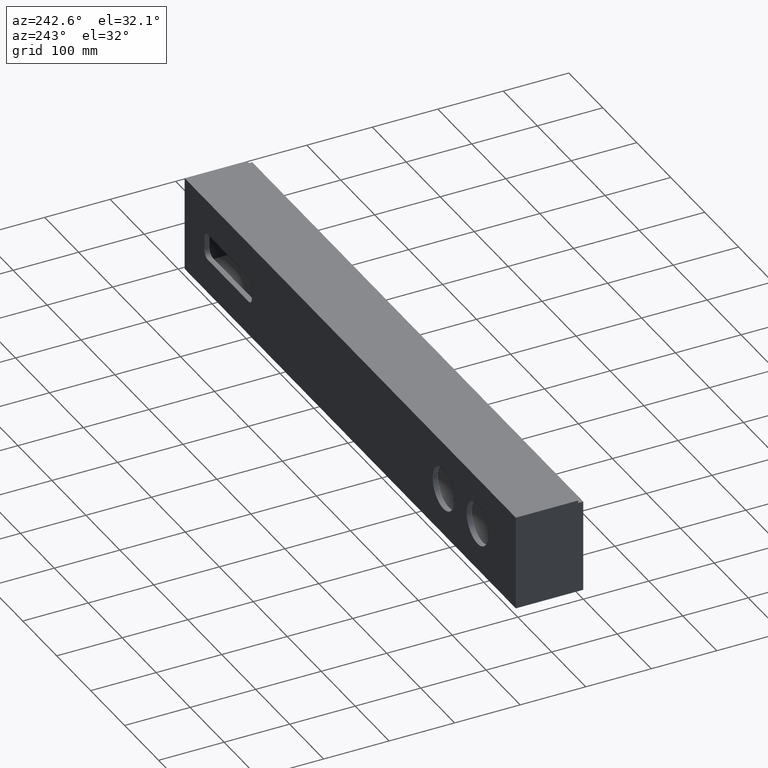
[diagram: clean part render]
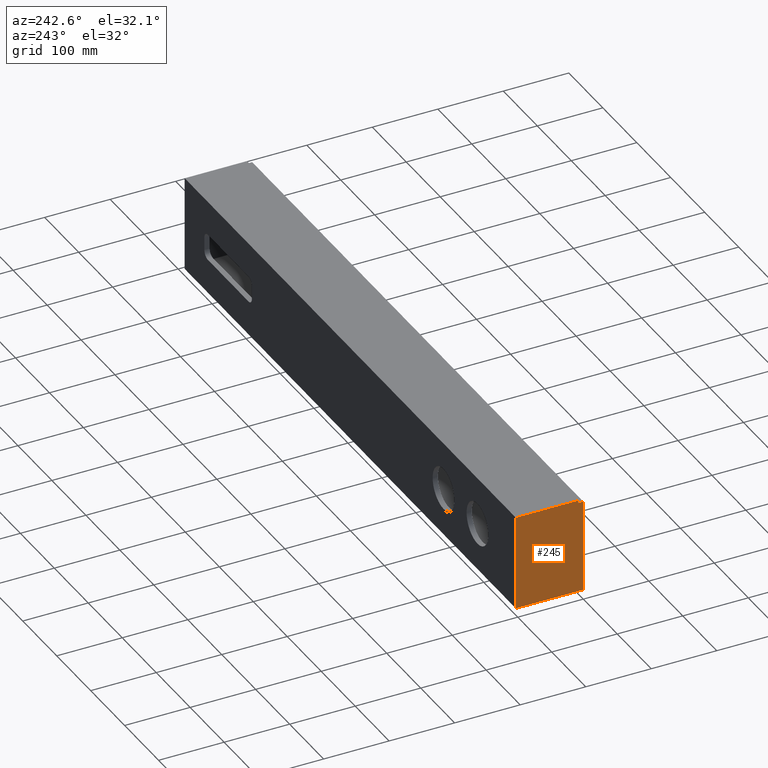
[diagram: same view with one face highlighted and labeled with its STEP entity id]
A machine part, auxiliary view. The second image highlights one B-rep face of the part: STEP entity #245.
In plain terms, the highlighted planar face has unit normal (1, 0, -0).
Its self-contained STEP definition (entity closure, byte-faithful):
#1 = DIRECTION ( 'NONE',  ( 0.0000000000000000000, 1.000000000000000000, 0.0000000000000000000 ) ) ;
#2 = CARTESIAN_POINT ( 'NONE',  ( 0.0000000000000000000, 0.0000000000000000000, 0.0000000000000000000 ) ) ;
#3 = LINE ( 'NONE', #2, #1520 ) ;
#12 = CARTESIAN_POINT ( 'NONE',  ( 0.0000000000000000000, -1.734723475976807094E-14, 141.0000000000000000 ) ) ;
#51 = VECTOR ( 'NONE', #278, 1000.000000000000000 ) ;
#106 = CARTESIAN_POINT ( 'NONE',  ( 0.0000000000000000000, 102.9999999999999858, 144.9999999999999716 ) ) ;
#167 = AXIS2_PLACEMENT_3D ( 'NONE', #1459, #1329, #1328 ) ;
#174 = DIRECTION ( 'NONE',  ( -0.0000000000000000000, 1.230300337572203632E-16, -1.000000000000000000 ) ) ;
#175 = CARTESIAN_POINT ( 'NONE',  ( 0.0000000000000000000, 0.0000000000000000000, 0.0000000000000000000 ) ) ;
#176 = LINE ( 'NONE', #175, #594 ) ;
#245 = ADVANCED_FACE ( 'NONE', ( #1389 ), #1378, .F. ) ;
#278 = DIRECTION ( 'NONE',  ( 0.0000000000000000000, 0.0000000000000000000, -1.000000000000000000 ) ) ;
#281 = CARTESIAN_POINT ( 'NONE',  ( 0.0000000000000000000, 7.999999999999983125, 145.0000000000000000 ) ) ;
#283 = LINE ( 'NONE', #281, #51 ) ;
#305 = EDGE_CURVE ( 'NONE', #578, #1122, #528, .T. ) ;
#345 = EDGE_CURVE ( 'NONE', #923, #658, #1232, .T. ) ;
#433 = EDGE_CURVE ( 'NONE', #1122, #923, #283, .T. ) ;
#469 = CARTESIAN_POINT ( 'NONE',  ( 0.0000000000000000000, 7.999999999999983125, 141.0000000000000000 ) ) ;
#503 = EDGE_CURVE ( 'NONE', #658, #1542, #176, .T. ) ;
#516 = CARTESIAN_POINT ( 'NONE',  ( 0.0000000000000000000, 7.999999999999983125, 145.0000000000000000 ) ) ;
#528 = LINE ( 'NONE', #516, #722 ) ;
#578 = VERTEX_POINT ( 'NONE', #106 ) ;
#594 = VECTOR ( 'NONE', #174, 1000.000000000000000 ) ;
#658 = VERTEX_POINT ( 'NONE', #12 ) ;
#667 = EDGE_CURVE ( 'NONE', #1542, #1035, #3, .T. ) ;
#722 = VECTOR ( 'NONE', #1290, 1000.000000000000000 ) ;
#746 = VECTOR ( 'NONE', #1524, 1000.000000000000000 ) ;
#809 = CARTESIAN_POINT ( 'NONE',  ( 0.0000000000000000000, 0.0000000000000000000, 0.0000000000000000000 ) ) ;
#923 = VERTEX_POINT ( 'NONE', #1265 ) ;
#957 = EDGE_LOOP ( 'NONE', ( #1377, #1391, #1387, #1382, #1361, #1465 ) ) ;
#970 = DIRECTION ( 'NONE',  ( 0.0000000000000000000, -9.570888143320318106E-17, 1.000000000000000000 ) ) ;
#975 = CARTESIAN_POINT ( 'NONE',  ( 0.0000000000000000000, 103.0000000000000000, 0.0000000000000000000 ) ) ;
#977 = LINE ( 'NONE', #975, #1558 ) ;
#1035 = VERTEX_POINT ( 'NONE', #1209 ) ;
#1063 = CARTESIAN_POINT ( 'NONE',  ( 0.0000000000000000000, 7.999999999999983125, 145.0000000000000000 ) ) ;
#1122 = VERTEX_POINT ( 'NONE', #1063 ) ;
#1209 = CARTESIAN_POINT ( 'NONE',  ( 0.0000000000000000000, 103.0000000000000000, 0.0000000000000000000 ) ) ;
#1226 = EDGE_CURVE ( 'NONE', #1035, #578, #977, .T. ) ;
#1232 = LINE ( 'NONE', #469, #746 ) ;
#1265 = CARTESIAN_POINT ( 'NONE',  ( 0.0000000000000000000, 7.999999999999983125, 141.0000000000000000 ) ) ;
#1290 = DIRECTION ( 'NONE',  ( -0.0000000000000000000, -1.000000000000000000, 2.921639538487254261E-16 ) ) ;
#1328 = DIRECTION ( 'NONE',  ( -0.0000000000000000000, 0.0000000000000000000, -1.000000000000000000 ) ) ;
#1329 = DIRECTION ( 'NONE',  ( 1.000000000000000000, 0.0000000000000000000, -0.0000000000000000000 ) ) ;
#1361 = ORIENTED_EDGE ( 'NONE', *, *, #305, .F. ) ;
#1377 = ORIENTED_EDGE ( 'NONE', *, *, #667, .F. ) ;
#1378 = PLANE ( 'NONE',  #167 ) ;
#1382 = ORIENTED_EDGE ( 'NONE', *, *, #433, .F. ) ;
#1387 = ORIENTED_EDGE ( 'NONE', *, *, #345, .F. ) ;
#1389 = FACE_OUTER_BOUND ( 'NONE', #957, .T. ) ;
#1391 = ORIENTED_EDGE ( 'NONE', *, *, #503, .F. ) ;
#1459 = CARTESIAN_POINT ( 'NONE',  ( 0.0000000000000000000, 0.0000000000000000000, 0.0000000000000000000 ) ) ;
#1465 = ORIENTED_EDGE ( 'NONE', *, *, #1226, .F. ) ;
#1520 = VECTOR ( 'NONE', #1, 1000.000000000000000 ) ;
#1524 = DIRECTION ( 'NONE',  ( 0.0000000000000000000, -1.000000000000000000, 0.0000000000000000000 ) ) ;
#1542 = VERTEX_POINT ( 'NONE', #809 ) ;
#1558 = VECTOR ( 'NONE', #970, 1000.000000000000000 ) ;